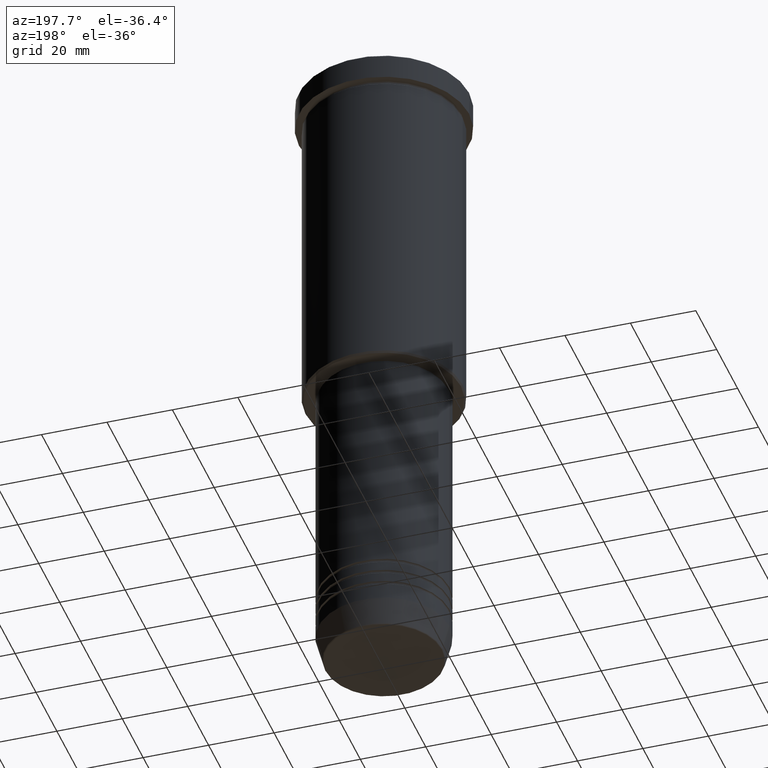
[diagram: clean part render]
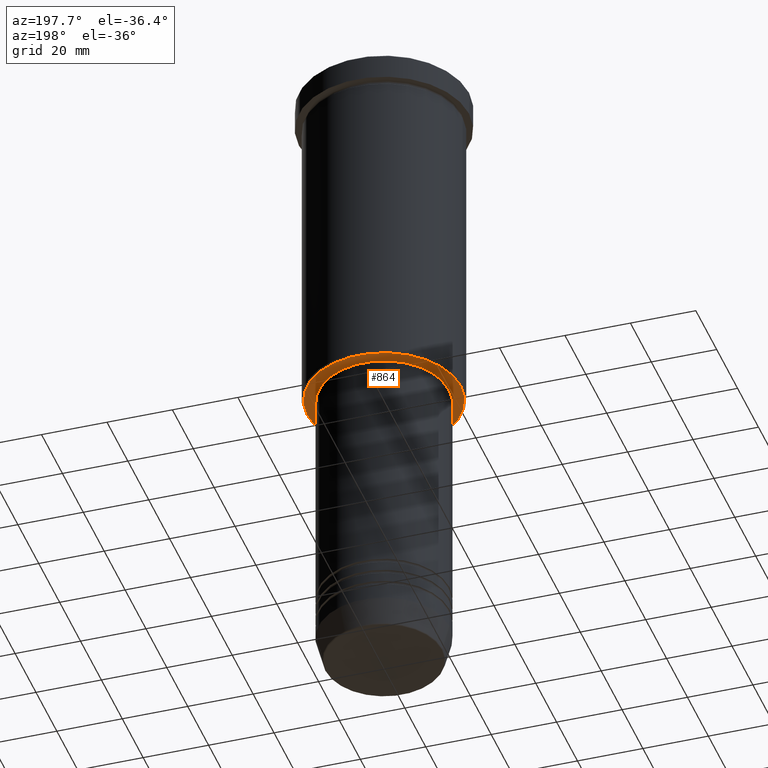
[diagram: same view with one face highlighted and labeled with its STEP entity id]
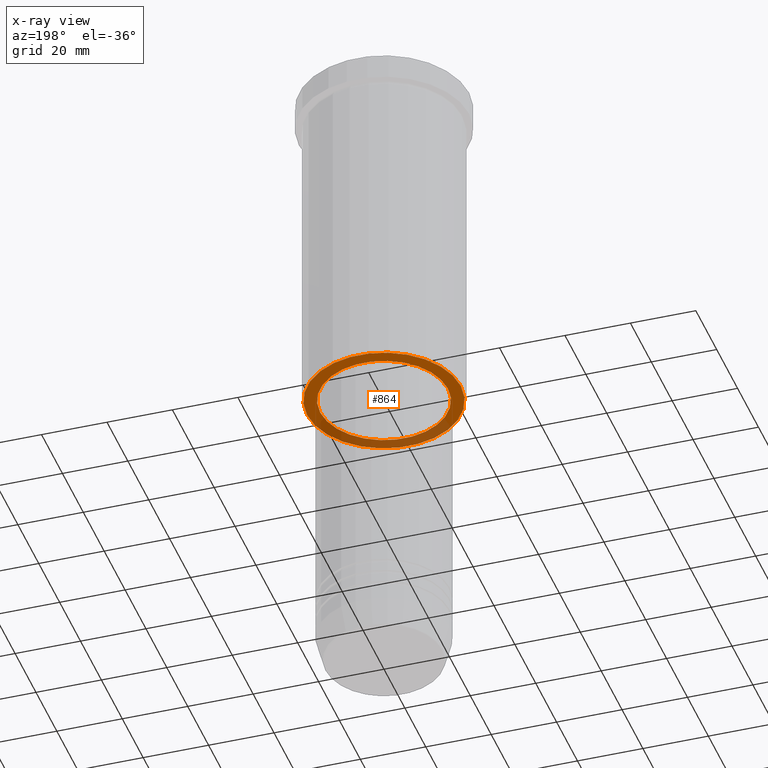
[diagram: x-ray of the same camera — body ghosted, the highlighted face saturated]
A machine part, auxiliary view. The second image highlights one B-rep face of the part: STEP entity #864.
The next image is the same camera in x-ray: the body ghosted, the highlighted face saturated — about 33% of this face is hidden behind the body in this view.
In plain terms, the highlighted planar face has unit normal (0, 0, -1).
Its self-contained STEP definition (entity closure, byte-faithful):
#20 = DIRECTION ( 'NONE',  ( 1.000000000000000000, 0.000000000000000000, 0.000000000000000000 ) ) ;
#23 = DIRECTION ( 'NONE',  ( -0.000000000000000000, -0.000000000000000000, 1.000000000000000000 ) ) ;
#28 = AXIS2_PLACEMENT_3D ( 'NONE', #909, #720, #527 ) ;
#30 = CARTESIAN_POINT ( 'NONE',  ( 19.50000000000000355, 0.000000000000000000, -105.9999999999999858 ) ) ;
#32 = FACE_OUTER_BOUND ( 'NONE', #742, .T. ) ;
#90 = ORIENTED_EDGE ( 'NONE', *, *, #659, .T. ) ;
#229 = VERTEX_POINT ( 'NONE', #30 ) ;
#251 = CIRCLE ( 'NONE', #314, 23.50000000000007461 ) ;
#258 = CARTESIAN_POINT ( 'NONE',  ( 23.50000000000007461, 0.000000000000000000, -105.9999999999999858 ) ) ;
#292 = CIRCLE ( 'NONE', #683, 23.50000000000007461 ) ;
#306 = DIRECTION ( 'NONE',  ( -1.000000000000000000, 0.000000000000000000, -0.000000000000000000 ) ) ;
#314 = AXIS2_PLACEMENT_3D ( 'NONE', #361, #369, #924 ) ;
#359 = CARTESIAN_POINT ( 'NONE',  ( 0.000000000000000000, 0.000000000000000000, -105.9999999999999858 ) ) ;
#361 = CARTESIAN_POINT ( 'NONE',  ( 0.000000000000000000, 0.000000000000000000, -105.9999999999999858 ) ) ;
#369 = DIRECTION ( 'NONE',  ( 0.000000000000000000, 0.000000000000000000, -1.000000000000000000 ) ) ;
#404 = EDGE_CURVE ( 'NONE', #229, #1069, #489, .T. ) ;
#416 = CARTESIAN_POINT ( 'NONE',  ( -19.50000000000000355, 2.388061258337339333E-15, -105.9999999999999858 ) ) ;
#486 = EDGE_CURVE ( 'NONE', #1089, #788, #251, .T. ) ;
#489 = CIRCLE ( 'NONE', #28, 19.50000000000000355 ) ;
#527 = DIRECTION ( 'NONE',  ( 1.000000000000000000, 0.000000000000000000, 0.000000000000000000 ) ) ;
#529 = ORIENTED_EDGE ( 'NONE', *, *, #828, .T. ) ;
#606 = AXIS2_PLACEMENT_3D ( 'NONE', #856, #23, #20 ) ;
#659 = EDGE_CURVE ( 'NONE', #788, #1089, #292, .T. ) ;
#673 = FACE_BOUND ( 'NONE', #697, .T. ) ;
#683 = AXIS2_PLACEMENT_3D ( 'NONE', #359, #1015, #916 ) ;
#697 = EDGE_LOOP ( 'NONE', ( #1019, #529 ) ) ;
#720 = DIRECTION ( 'NONE',  ( -0.000000000000000000, -0.000000000000000000, 1.000000000000000000 ) ) ;
#742 = EDGE_LOOP ( 'NONE', ( #832, #90 ) ) ;
#788 = VERTEX_POINT ( 'NONE', #944 ) ;
#828 = EDGE_CURVE ( 'NONE', #1069, #229, #1123, .T. ) ;
#832 = ORIENTED_EDGE ( 'NONE', *, *, #486, .T. ) ;
#847 = PLANE ( 'NONE',  #1011 ) ;
#856 = CARTESIAN_POINT ( 'NONE',  ( 0.000000000000000000, 0.000000000000000000, -105.9999999999999858 ) ) ;
#864 = ADVANCED_FACE ( 'NONE', ( #32, #673 ), #847, .T. ) ;
#909 = CARTESIAN_POINT ( 'NONE',  ( 0.000000000000000000, 0.000000000000000000, -105.9999999999999858 ) ) ;
#916 = DIRECTION ( 'NONE',  ( -1.000000000000000000, 0.000000000000000000, 0.000000000000000000 ) ) ;
#924 = DIRECTION ( 'NONE',  ( -1.000000000000000000, 0.000000000000000000, 0.000000000000000000 ) ) ;
#944 = CARTESIAN_POINT ( 'NONE',  ( -23.50000000000007461, 2.908536147974968052E-15, -105.9999999999999858 ) ) ;
#1011 = AXIS2_PLACEMENT_3D ( 'NONE', #1132, #1117, #306 ) ;
#1015 = DIRECTION ( 'NONE',  ( 0.000000000000000000, 0.000000000000000000, -1.000000000000000000 ) ) ;
#1019 = ORIENTED_EDGE ( 'NONE', *, *, #404, .T. ) ;
#1069 = VERTEX_POINT ( 'NONE', #416 ) ;
#1089 = VERTEX_POINT ( 'NONE', #258 ) ;
#1117 = DIRECTION ( 'NONE',  ( 0.000000000000000000, 0.000000000000000000, -1.000000000000000000 ) ) ;
#1123 = CIRCLE ( 'NONE', #606, 19.50000000000000355 ) ;
#1132 = CARTESIAN_POINT ( 'NONE',  ( 0.000000000000000000, 24.00000000000000000, -105.9999999999999858 ) ) ;